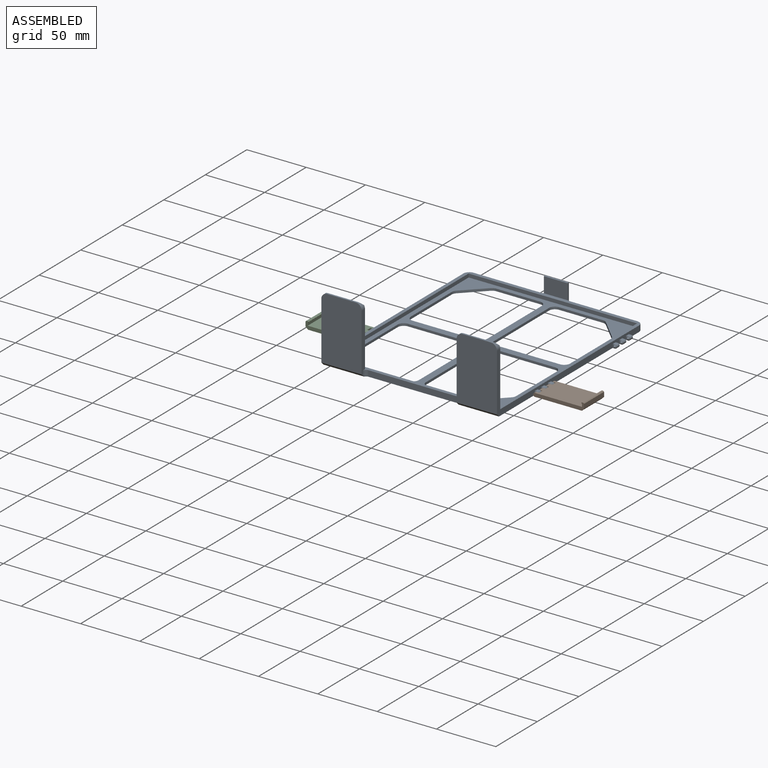
[diagram: assembled view]
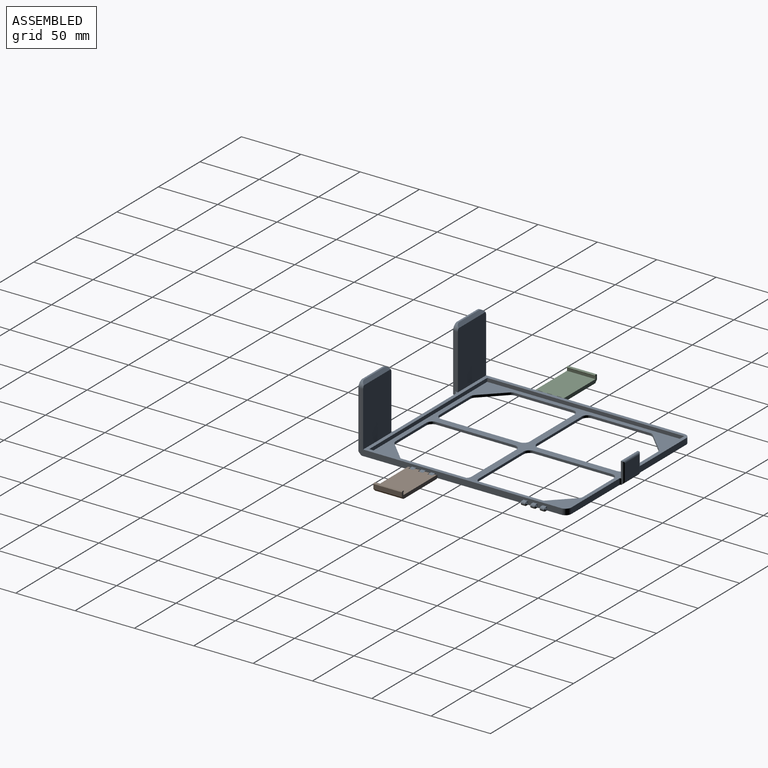
[diagram: assembled view, second angle]
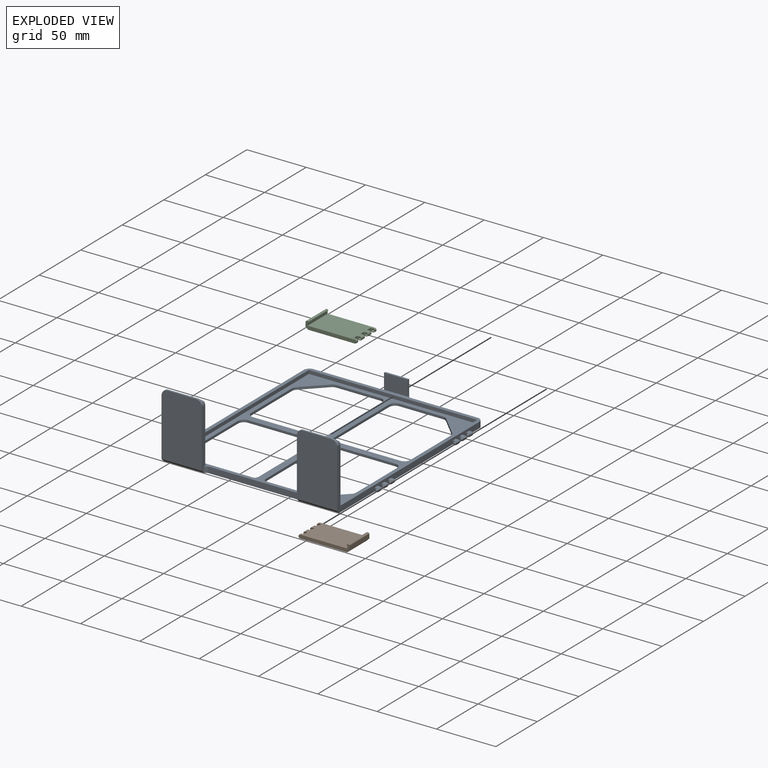
[diagram: exploded view]
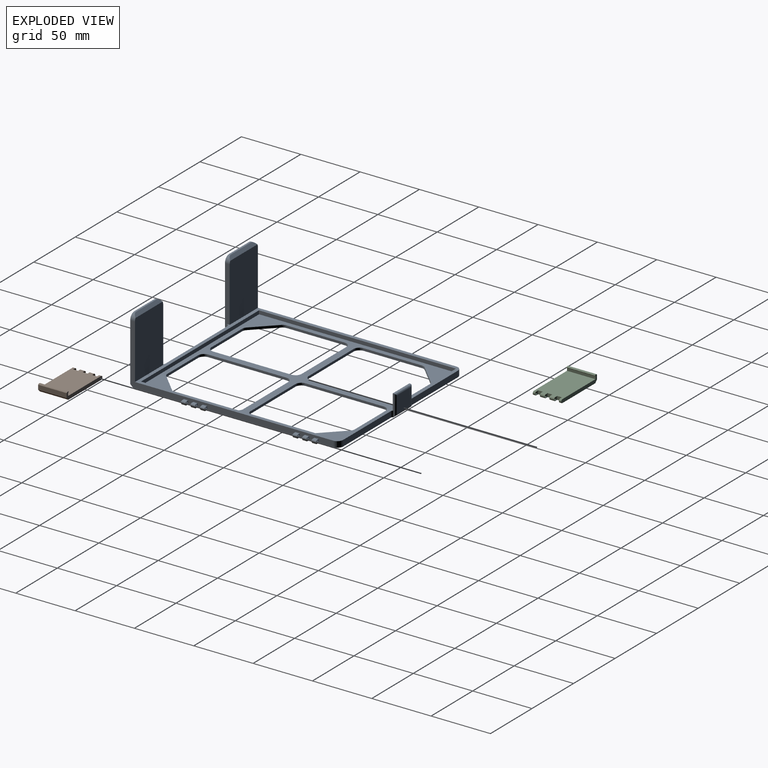
[diagram: exploded view, second angle]
ASSEMBLY  parts=3 mates=4
PART A: 167 faces, bbox 154.8x56x179 mm
  f0: plane 57.5x5mm, normal (0,0,1), area 287.5mm2, adj f4,f28,f33,f146
  f1: plane 74x5mm, normal (0,0,-1), area 370mm2, adj f28,f33,f134,f135
  f2: plane 171x51mm, normal (1,0,0), area 971.1mm2, adj f26,f28,f33,f35,f37,f39,f42,f44
  f3: plane 171x51mm, normal (-1,0,0), area 971.1mm2, adj f4,f28,f33,f56,f58,f60,f63,f65
  f4: cylinder r=5mm len=5mm, axis (0,1,0), area 39.3mm2, adj f0,f3,f28,f33
  f5: plane 57.5x5mm, normal (0,0,1), area 287.5mm2, adj f26,f28,f33,f142
  f6: plane 66x2mm, normal (-1,0,0), area 132mm2, adj f27,f28,f157,f165
  f7: plane 36.93x2mm, normal (0,0,-1), area 73.9mm2, adj f27,f28,f157,f158
  f8: plane 17.07x17.07mm, normal (0.71,0,-0.71), area 48.3mm2, adj f27,f28,f158,f159
  f9: plane 48.93x2mm, normal (1,0,0), area 97.9mm2, adj f27,f28,f159,f160
  f10: plane 36.93x2mm, normal (0,0,1), area 73.9mm2, adj f27,f28,f151,f152
  f11: plane 17.07x17.07mm, normal (-0.71,0,0.71), area 48.3mm2, adj f27,f28,f152,f153
  f12: plane 48.93x2mm, normal (-1,0,0), area 97.9mm2, adj f27,f28,f153,f154
  f13: plane 54x2mm, normal (0,0,-1), area 108mm2, adj f27,f28,f154,f166
  f14: plane 48.93x2mm, normal (1,0,0), area 97.9mm2, adj f27,f28,f161,f162
  f15: plane 17.07x17.07mm, normal (0.71,0,0.71), area 48.3mm2, adj f27,f28,f149,f162
  f16: plane 36.93x2mm, normal (0,0,1), area 73.9mm2, adj f27,f28,f149,f150
  f17: plane 66x2mm, normal (-1,0,0), area 132mm2, adj f27,f28,f150,f164
  f18: plane 48.93x2mm, normal (-1,0,0), area 97.9mm2, adj f27,f28,f147,f155
  f19: plane 17.07x17.07mm, normal (-0.71,0,-0.71), area 48.3mm2, adj f27,f28,f147,f148
  f20: plane 36.93x2mm, normal (0,0,-1), area 73.9mm2, adj f27,f28,f148,f156
  f21: plane 66x2mm, normal (1,0,0), area 132mm2, adj f27,f28,f156,f163
  f22: plane 54x2mm, normal (0,0,1), area 108mm2, adj f27,f28,f160,f165
  f23: plane 66x2mm, normal (1,0,0), area 132mm2, adj f27,f28,f151,f166
  f24: plane 54x2mm, normal (0,0,-1), area 108mm2, adj f27,f28,f161,f164
  f25: plane 54x2mm, normal (0,0,1), area 108mm2, adj f27,f28,f155,f163
  f26: cylinder r=5mm len=5mm, axis (0,1,0), area 39.3mm2, adj f2,f5,f28,f33
  f27: plane 166x142mm, normal (0,-1,0), area 4984.7mm2, adj f6,f7,f8,f9,f10,f11,f12,f13
  f28: plane 174.5x153.04mm, normal (0,1,0), area 7093.3mm2, adj f0,f1,f2,f3,f4,f5,f6,f7
  f29: plane 166x3mm, normal (1,0,0), area 498mm2, adj f27,f30,f32,f33
  f30: plane 142x3mm, normal (0,0,1), area 426mm2, adj f27,f29,f31,f33
  f31: plane 166x3mm, normal (-1,0,0), area 498mm2, adj f27,f30,f32,f33
  f32: plane 142x3mm, normal (0,0,-1), area 426mm2, adj f27,f29,f31,f33
  f33: plane 176.5x148mm, normal (0,-1,0), area 1886.1mm2, adj f0,f1,f2,f3,f4,f5,f26,f29
  f34: cylinder r=1.5mm len=3.6mm, axis (0,0,1), area 12.7mm2, adj f35,f36,f37,f39
  f35: plane 3.6x1.9mm, normal (0,-1,0), area 6.8mm2, adj f2,f34,f37,f39
  f36: plane 3.6x0.44mm, normal (0.71,0.71,0), area 2.2mm2, adj f28,f34,f37,f39
  f37: plane 3.4x3mm, normal (0,0,1), area 4mm2, adj f2,f28,f34,f35,f36,f38
  f38: cone r=1.3mm half-angle=45deg, axis (0,0,-1), area 7.5mm2, adj f37
  f39: plane 3.4x3mm, normal (0,0,-1), area 4mm2, adj f2,f28,f34,f35,f36,f40
  f40: cone r=1.3mm half-angle=45deg, axis (0,0,1), area 7.5mm2, adj f39
  f41: cylinder r=1.5mm len=3.6mm, axis (0,0,1), area 12.7mm2, adj f42,f43,f44,f46
  f42: plane 3.6x1.9mm, normal (0,-1,0), area 6.8mm2, adj f2,f41,f44,f46
  f43: plane 3.6x0.44mm, normal (0.71,0.71,0), area 2.2mm2, adj f28,f41,f44,f46
  f44: plane 3.4x3mm, normal (0,0,1), area 4mm2, adj f2,f28,f41,f42,f43,f45
  f45: cone r=1.3mm half-angle=45deg, axis (0,0,-1), area 7.5mm2, adj f44
  f46: plane 3.4x3mm, normal (0,0,-1), area 4mm2, adj f2,f28,f41,f42,f43,f47
  f47: cone r=1.3mm half-angle=45deg, axis (0,0,1), area 7.5mm2, adj f46
  f48: cylinder r=1.5mm len=3.6mm, axis (0,0,1), area 12.7mm2, adj f49,f50,f51,f53
  f49: plane 3.6x1.9mm, normal (0,-1,0), area 6.8mm2, adj f2,f48,f51,f53
  f50: plane 3.6x0.44mm, normal (0.71,0.71,0), area 2.2mm2, adj f28,f48,f51,f53
  f51: plane 3.4x3mm, normal (0,0,1), area 4mm2, adj f2,f28,f48,f49,f50,f52
  f52: cone r=1.3mm half-angle=45deg, axis (0,0,-1), area 7.5mm2, adj f51
  f53: plane 3.4x3mm, normal (0,0,-1), area 4mm2, adj f2,f28,f48,f49,f50,f54
  f54: cone r=1.3mm half-angle=45deg, axis (0,0,1), area 7.5mm2, adj f53
  f55: cylinder r=1.5mm len=3.6mm, axis (0,0,1), area 12.7mm2, adj f56,f57,f58,f60
  f56: plane 3.6x1.9mm, normal (0,-1,0), area 6.8mm2, adj f3,f55,f58,f60
  f57: plane 3.6x0.44mm, normal (-0.71,0.71,0), area 2.2mm2, adj f28,f55,f58,f60
  f58: plane 3.4x3mm, normal (0,0,1), area 4mm2, adj f3,f28,f55,f56,f57,f59
  f59: cone r=1.3mm half-angle=45deg, axis (0,0,-1), area 7.5mm2, adj f58
  f60: plane 3.4x3mm, normal (0,0,-1), area 4mm2, adj f3,f28,f55,f56,f57,f61
  f61: cone r=1.3mm half-angle=45deg, axis (0,0,1), area 7.5mm2, adj f60
  f62: cylinder r=1.5mm len=3.6mm, axis (0,0,1), area 12.7mm2, adj f63,f64,f65,f67
  f63: plane 3.6x1.9mm, normal (0,-1,0), area 6.8mm2, adj f3,f62,f65,f67
  f64: plane 3.6x0.44mm, normal (-0.71,0.71,0), area 2.2mm2, adj f28,f62,f65,f67
  f65: plane 3.4x3mm, normal (0,0,1), area 4mm2, adj f3,f28,f62,f63,f64,f66
  f66: cone r=1.3mm half-angle=45deg, axis (0,0,-1), area 7.5mm2, adj f65
  f67: plane 3.4x3mm, normal (0,0,-1), area 4mm2, adj f3,f28,f62,f63,f64,f68
  f68: cone r=1.3mm half-angle=45deg, axis (0,0,1), area 7.5mm2, adj f67
  f69: cylinder r=1.5mm len=3.6mm, axis (0,0,1), area 12.7mm2, adj f70,f71,f72,f74
  f70: plane 3.6x1.9mm, normal (0,-1,0), area 6.8mm2, adj f3,f69,f72,f74
  f71: plane 3.6x0.44mm, normal (-0.71,0.71,0), area 2.2mm2, adj f28,f69,f72,f74
  f72: plane 3.4x3mm, normal (0,0,1), area 4mm2, adj f3,f28,f69,f70,f71,f73
  f73: cone r=1.3mm half-angle=45deg, axis (0,0,-1), area 7.5mm2, adj f72
  f74: plane 3.4x3mm, normal (0,0,-1), area 4mm2, adj f3,f28,f69,f70,f71,f75
  f75: cone r=1.3mm half-angle=45deg, axis (0,0,1), area 7.5mm2, adj f74
  f76: cylinder r=1.5mm len=3.6mm, axis (0,0,-1), area 12.7mm2, adj f77,f78,f79,f81
  f77: plane 3.6x1.9mm, normal (0,-1,0), area 6.8mm2, adj f3,f76,f79,f81
  f78: plane 3.6x0.44mm, normal (-0.71,0.71,0), area 2.2mm2, adj f28,f76,f79,f81
  f79: plane 3.4x3mm, normal (0,0,-1), area 4mm2, adj f3,f28,f76,f77,f78,f80
  f80: cone r=1.3mm half-angle=45deg, axis (0,0,1), area 7.5mm2, adj f79
  f81: plane 3.4x3mm, normal (0,0,1), area 4mm2, adj f3,f28,f76,f77,f78,f82
  f82: cone r=1.3mm half-angle=45deg, axis (0,0,-1), area 7.5mm2, adj f81
  f83: cylinder r=1.5mm len=3.6mm, axis (0,0,-1), area 12.7mm2, adj f84,f85,f86,f88
  f84: plane 3.6x1.9mm, normal (0,-1,0), area 6.8mm2, adj f3,f83,f86,f88
  f85: plane 3.6x0.44mm, normal (-0.71,0.71,0), area 2.2mm2, adj f28,f83,f86,f88
  f86: plane 3.4x3mm, normal (0,0,-1), area 4mm2, adj f3,f28,f83,f84,f85,f87
  f87: cone r=1.3mm half-angle=45deg, axis (0,0,1), area 7.5mm2, adj f86
  f88: plane 3.4x3mm, normal (0,0,1), area 4mm2, adj f3,f28,f83,f84,f85,f89
  f89: cone r=1.3mm half-angle=45deg, axis (0,0,-1), area 7.5mm2, adj f88
  f90: cylinder r=1.5mm len=3.6mm, axis (0,0,-1), area 12.7mm2, adj f91,f92,f93,f95
  f91: plane 3.6x1.9mm, normal (0,-1,0), area 6.8mm2, adj f3,f90,f93,f95
  f92: plane 3.6x0.44mm, normal (-0.71,0.71,0), area 2.2mm2, adj f28,f90,f93,f95
  f93: plane 3.4x3mm, normal (0,0,-1), area 4mm2, adj f3,f28,f90,f91,f92,f94
  f94: cone r=1.3mm half-angle=45deg, axis (0,0,1), area 7.5mm2, adj f93
  f95: plane 3.4x3mm, normal (0,0,1), area 4mm2, adj f3,f28,f90,f91,f92,f96
  f96: cone r=1.3mm half-angle=45deg, axis (0,0,-1), area 7.5mm2, adj f95
  f97: cylinder r=1.5mm len=3.6mm, axis (0,0,-1), area 12.7mm2, adj f98,f99,f100,f102
  f98: plane 3.6x1.9mm, normal (0,-1,0), area 6.8mm2, adj f2,f97,f100,f102
  f99: plane 3.6x0.44mm, normal (0.71,0.71,0), area 2.2mm2, adj f28,f97,f100,f102
  f100: plane 3.4x3mm, normal (0,0,-1), area 4mm2, adj f2,f28,f97,f98,f99,f101
  f101: cone r=1.3mm half-angle=45deg, axis (0,0,1), area 7.5mm2, adj f100
  f102: plane 3.4x3mm, normal (0,0,1), area 4mm2, adj f2,f28,f97,f98,f99,f103
  f103: cone r=1.3mm half-angle=45deg, axis (0,0,-1), area 7.5mm2, adj f102
  f104: cylinder r=1.5mm len=3.6mm, axis (0,0,-1), area 12.7mm2, adj f105,f106,f107,f109
  f105: plane 3.6x1.9mm, normal (0,-1,0), area 6.8mm2, adj f2,f104,f107,f109
  f106: plane 3.6x0.44mm, normal (0.71,0.71,0), area 2.2mm2, adj f28,f104,f107,f109
  f107: plane 3.4x3mm, normal (0,0,-1), area 4mm2, adj f2,f28,f104,f105,f106,f108
  f108: cone r=1.3mm half-angle=45deg, axis (0,0,1), area 7.5mm2, adj f107
  f109: plane 3.4x3mm, normal (0,0,1), area 4mm2, adj f2,f28,f104,f105,f106,f110
  f110: cone r=1.3mm half-angle=45deg, axis (0,0,-1), area 7.5mm2, adj f109
  f111: cylinder r=1.5mm len=3.6mm, axis (0,0,-1), area 12.7mm2, adj f112,f113,f114,f116
  f112: plane 3.6x1.9mm, normal (0,-1,0), area 6.8mm2, adj f2,f111,f114,f116
  f113: plane 3.6x0.44mm, normal (0.71,0.71,0), area 2.2mm2, adj f28,f111,f114,f116
  f114: plane 3.4x3mm, normal (0,0,-1), area 4mm2, adj f2,f28,f111,f112,f113,f115
  f115: cone r=1.3mm half-angle=45deg, axis (0,0,1), area 7.5mm2, adj f114
  f116: plane 3.4x3mm, normal (0,0,1), area 4mm2, adj f2,f28,f111,f112,f113,f117
  f117: cone r=1.3mm half-angle=45deg, axis (0,0,-1), area 7.5mm2, adj f116
  f118: plane 48.5x34mm, normal (0,0,1), area 1647.9mm2, adj f3,f33,f120,f126,f127,f133
  f119: plane 53.5x34mm, normal (0,0,-1), area 1808.3mm2, adj f3,f120,f121,f126,f127,f131
  f120: plane 49.5x4mm, normal (1,0,0), area 187mm2, adj f33,f118,f119,f127,f131,f135
  f121: plane 24x1.5mm, normal (0,-1,0), area 36mm2, adj f119,f126,f127,f133
  f122: plane 48.5x34mm, normal (0,0,1), area 1647.9mm2, adj f2,f33,f123,f128,f129,f132
  f123: plane 49.5x4mm, normal (-1,0,0), area 187mm2, adj f33,f122,f124,f128,f130,f134
  f124: plane 53.5x34mm, normal (0,0,-1), area 1808.3mm2, adj f2,f123,f125,f128,f129,f130
  f125: plane 24x1.5mm, normal (0,-1,0), area 36mm2, adj f124,f128,f129,f132
  f126: cylinder r=5mm len=5mm, axis (0,0,1), area 22.9mm2, adj f3,f118,f119,f121,f133
  f127: cylinder r=5mm len=5mm, axis (0,0,-1), area 22.9mm2, adj f118,f119,f120,f121,f133
  f128: cylinder r=5mm len=5mm, axis (0,0,1), area 22.9mm2, adj f122,f123,f124,f125,f132
  f129: cylinder r=5mm len=5mm, axis (0,0,-1), area 22.9mm2, adj f2,f122,f124,f125,f132
  f130: plane 34.4x2.5mm, normal (0,0.71,-0.71), area 120.5mm2, adj f2,f28,f123,f124,f134
  f131: plane 34.4x2.5mm, normal (0,0.71,-0.71), area 120.5mm2, adj f3,f28,f119,f120,f135
  f132: plane 32.66x2.5mm, normal (0,-0.71,0.71), area 106.6mm2, adj f122,f125,f128,f129
  f133: plane 32.66x2.5mm, normal (0,-0.71,0.71), area 106.6mm2, adj f118,f121,f126,f127
  f134: cylinder r=3mm len=5mm, axis (0,-1,0), area 22.4mm2, adj f1,f28,f33,f123,f130
  f135: cylinder r=3mm len=5mm, axis (0,1,0), area 22.4mm2, adj f1,f28,f33,f120,f131
  f136: plane 13x1.1mm, normal (-1,0,0), area 14.3mm2, adj f33,f139,f140,f145
  f137: plane 17x14.5mm, normal (0,0,1), area 246.5mm2, adj f141,f143,f144,f145
  f138: plane 13x1.1mm, normal (1,0,0), area 14.3mm2, adj f33,f139,f140,f143
  f139: plane 20x13mm, normal (0,0,-1), area 260mm2, adj f33,f136,f138,f140
  f140: plane 20x1.1mm, normal (0,-1,0), area 22mm2, adj f136,f138,f139,f144
  f141: plane 20.18x2.01mm, normal (0,0.71,0.71), area 55.2mm2, adj f28,f137,f142,f143,f145,f146
  f142: cylinder r=1.5mm len=5mm, axis (0,-1,0), area 11.7mm2, adj f5,f28,f33,f141,f143
  f143: cylinder r=1.5mm len=17.5mm, axis (0,1,0), area 37.7mm2, adj f137,f138,f141,f142,f144
  f144: cylinder r=1.5mm len=20mm, axis (-1,0,0), area 44.6mm2, adj f137,f140,f143,f145
  f145: cylinder r=1.5mm len=17.5mm, axis (0,-1,0), area 37.7mm2, adj f136,f137,f141,f144,f146
  f146: cylinder r=1.5mm len=5mm, axis (0,1,0), area 11.7mm2, adj f0,f28,f33,f141,f145
  f147: cylinder r=5mm len=3.54mm, axis (0,-1,0), area 7.9mm2, adj f18,f19,f27,f28
  f148: cylinder r=5mm len=3.54mm, axis (0,-1,0), area 7.9mm2, adj f19,f20,f27,f28
  f149: cylinder r=5mm len=3.54mm, axis (0,1,0), area 7.9mm2, adj f15,f16,f27,f28
  f150: cylinder r=5mm len=5mm, axis (0,1,0), area 15.7mm2, adj f16,f17,f27,f28
  f151: cylinder r=5mm len=5mm, axis (0,1,0), area 15.7mm2, adj f10,f23,f27,f28
  f152: cylinder r=5mm len=3.54mm, axis (0,1,0), area 7.9mm2, adj f10,f11,f27,f28
  f153: cylinder r=5mm len=3.54mm, axis (0,-1,0), area 7.9mm2, adj f11,f12,f27,f28
  f154: cylinder r=5mm len=5mm, axis (0,1,0), area 15.7mm2, adj f12,f13,f27,f28
  f155: cylinder r=5mm len=5mm, axis (0,1,0), area 15.7mm2, adj f18,f25,f27,f28
  f156: cylinder r=5mm len=5mm, axis (0,-1,0), area 15.7mm2, adj f20,f21,f27,f28
  f157: cylinder r=5mm len=5mm, axis (0,-1,0), area 15.7mm2, adj f6,f7,f27,f28
  f158: cylinder r=5mm len=3.54mm, axis (0,-1,0), area 7.9mm2, adj f7,f8,f27,f28
  f159: cylinder r=5mm len=3.54mm, axis (0,1,0), area 7.9mm2, adj f8,f9,f27,f28
  f160: cylinder r=5mm len=5mm, axis (0,-1,0), area 15.7mm2, adj f9,f22,f27,f28
  f161: cylinder r=5mm len=5mm, axis (0,-1,0), area 15.7mm2, adj f14,f24,f27,f28
  f162: cylinder r=5mm len=3.54mm, axis (0,1,0), area 7.9mm2, adj f14,f15,f27,f28
  f163: cylinder r=5mm len=5mm, axis (0,1,0), area 15.7mm2, adj f21,f25,f27,f28
  f164: cylinder r=5mm len=5mm, axis (0,1,0), area 15.7mm2, adj f17,f24,f27,f28
  f165: cylinder r=5mm len=5mm, axis (0,1,0), area 15.7mm2, adj f6,f22,f27,f28
  f166: cylinder r=5mm len=5mm, axis (0,1,0), area 15.7mm2, adj f13,f23,f27,f28
PART B: 30 faces, bbox 6.4x43x24 mm
  f0: plane 39.7x24mm, normal (-1,0,0), area 927.6mm2, adj f1,f9,f10,f11,f13,f14,f16,f17
  f1: cylinder r=1.5mm len=4mm, axis (0,0,-1), area 18.8mm2, adj f0,f2,f10,f28
  f2: plane 39.5x24mm, normal (1,0,0), area 922.8mm2, adj f1,f3,f10,f11,f13,f14,f16,f17
  f3: plane 24x2mm, normal (0.71,-0.71,0), area 67.9mm2, adj f2,f4,f20,f24
  f4: plane 24x3.8mm, normal (0,-1,0), area 91.2mm2, adj f3,f5,f20,f24
  f5: plane 24x0.6mm, normal (-0.71,-0.71,0), area 20.4mm2, adj f4,f6,f20,f24
  f6: plane 24x1.4mm, normal (-1,0,0), area 33.6mm2, adj f5,f7,f20,f24
  f7: plane 24x0.5mm, normal (-0.71,0.71,0), area 17mm2, adj f6,f8,f20,f24
  f8: plane 24x0.7mm, normal (0.71,0.71,0), area 23.8mm2, adj f7,f9,f20,f24
  f9: plane 24x2.2mm, normal (0,1,0), area 52.8mm2, adj f0,f8,f20,f24
  f10: plane 3.6x3mm, normal (0,0,-1), area 4.5mm2, adj f0,f1,f2,f11,f12
  f11: plane 4x3mm, normal (0,1,0), area 12mm2, adj f0,f2,f10,f14
  f12: cone r=0mm half-angle=45deg, axis (0,0,-1), area 7.5mm2, adj f10
  f13: cylinder r=1.5mm len=4mm, axis (0,0,1), area 18.8mm2, adj f0,f2,f14,f16
  f14: plane 3.6x3mm, normal (0,0,1), area 4.5mm2, adj f0,f2,f11,f13,f15
  f15: cone r=0mm half-angle=45deg, axis (0,0,1), area 7.5mm2, adj f14
  f16: plane 3.6x3mm, normal (0,0,-1), area 4.5mm2, adj f0,f2,f13,f17,f18
  f17: plane 4x3mm, normal (0,1,0), area 12mm2, adj f0,f2,f16,f21
  f18: cone r=0mm half-angle=45deg, axis (0,0,-1), area 7.5mm2, adj f16
  f19: cylinder r=1.5mm len=3mm, axis (0,0,1), area 9.4mm2, adj f0,f2,f20,f21
  f20: plane 43x6.4mm, normal (0,0,-1), area 132.4mm2, adj f0,f2,f3,f4,f5,f6,f7,f8
  f21: plane 3.6x3mm, normal (0,0,1), area 4.5mm2, adj f0,f2,f17,f19,f22
  f22: cone r=0mm half-angle=45deg, axis (0,0,1), area 7.5mm2, adj f21
  f23: cylinder r=1.5mm len=3mm, axis (0,0,-1), area 9.4mm2, adj f0,f2,f24,f25
  f24: plane 43x6.4mm, normal (0,0,1), area 132.4mm2, adj f0,f2,f3,f4,f5,f6,f7,f8
  f25: plane 3.6x3mm, normal (0,0,-1), area 4.5mm2, adj f0,f2,f23,f26,f27
  f26: plane 4x3mm, normal (0,1,0), area 12mm2, adj f0,f2,f25,f28
  f27: cone r=0mm half-angle=45deg, axis (0,0,-1), area 7.5mm2, adj f25
  f28: plane 3.6x3mm, normal (0,0,1), area 4.5mm2, adj f0,f1,f2,f26,f29
  f29: cone r=0mm half-angle=45deg, axis (0,0,1), area 7.5mm2, adj f28
PART C: 30 faces, bbox 6.4x43x24 mm
  f0: plane 39.7x24mm, normal (1,0,0), area 927.6mm2, adj f1,f9,f10,f11,f13,f14,f16,f17
  f1: cylinder r=1.5mm len=4mm, axis (0,0,-1), area 18.8mm2, adj f0,f2,f10,f28
  f2: plane 39.5x24mm, normal (-1,0,0), area 922.8mm2, adj f1,f3,f10,f11,f13,f14,f16,f17
  f3: plane 24x2mm, normal (-0.71,-0.71,0), area 67.9mm2, adj f2,f4,f20,f24
  f4: plane 24x3.8mm, normal (0,-1,0), area 91.2mm2, adj f3,f5,f20,f24
  f5: plane 24x0.6mm, normal (0.71,-0.71,0), area 20.4mm2, adj f4,f6,f20,f24
  f6: plane 24x1.4mm, normal (1,0,0), area 33.6mm2, adj f5,f7,f20,f24
  f7: plane 24x0.5mm, normal (0.71,0.71,0), area 17mm2, adj f6,f8,f20,f24
  f8: plane 24x0.7mm, normal (-0.71,0.71,0), area 23.8mm2, adj f7,f9,f20,f24
  f9: plane 24x2.2mm, normal (0,1,0), area 52.8mm2, adj f0,f8,f20,f24
  f10: plane 3.6x3mm, normal (0,0,-1), area 4.5mm2, adj f0,f1,f2,f11,f12
  f11: plane 4x3mm, normal (0,1,0), area 12mm2, adj f0,f2,f10,f14
  f12: cone r=0mm half-angle=45deg, axis (0,0,-1), area 7.5mm2, adj f10
  f13: cylinder r=1.5mm len=4mm, axis (0,0,1), area 18.8mm2, adj f0,f2,f14,f16
  f14: plane 3.6x3mm, normal (0,0,1), area 4.5mm2, adj f0,f2,f11,f13,f15
  f15: cone r=0mm half-angle=45deg, axis (0,0,1), area 7.5mm2, adj f14
  f16: plane 3.6x3mm, normal (0,0,-1), area 4.5mm2, adj f0,f2,f13,f17,f18
  f17: plane 4x3mm, normal (0,1,0), area 12mm2, adj f0,f2,f16,f21
  f18: cone r=0mm half-angle=45deg, axis (0,0,-1), area 7.5mm2, adj f16
  f19: cylinder r=1.5mm len=3mm, axis (0,0,1), area 9.4mm2, adj f0,f2,f20,f21
  f20: plane 43x6.4mm, normal (0,0,-1), area 132.4mm2, adj f0,f2,f3,f4,f5,f6,f7,f8
  f21: plane 3.6x3mm, normal (0,0,1), area 4.5mm2, adj f0,f2,f17,f19,f22
  f22: cone r=0mm half-angle=45deg, axis (0,0,1), area 7.5mm2, adj f21
  f23: cylinder r=1.5mm len=3mm, axis (0,0,-1), area 9.4mm2, adj f0,f2,f24,f25
  f24: plane 43x6.4mm, normal (0,0,1), area 132.4mm2, adj f0,f2,f3,f4,f5,f6,f7,f8
  f25: plane 3.6x3mm, normal (0,0,-1), area 4.5mm2, adj f0,f2,f23,f26,f27
  f26: plane 4x3mm, normal (0,1,0), area 12mm2, adj f0,f2,f25,f28
  f27: cone r=0mm half-angle=45deg, axis (0,0,-1), area 7.5mm2, adj f25
  f28: plane 3.6x3mm, normal (0,0,1), area 4.5mm2, adj f0,f1,f2,f26,f29
  f29: cone r=0mm half-angle=45deg, axis (0,0,1), area 7.5mm2, adj f28
PLACE A rot(axis=(-1,0,0),90deg) t=(0,47.51,24.34)mm fixed
PLACE B rot(axis=(-0.58,0.58,0.58),120deg) t=(115.4,47.51,60.74)mm
PLACE C rot(axis=(-0.58,-0.58,-0.58),120deg) t=(-115.4,47.51,60.74)mm
MATE planar C.f2 <-> A.f28  axis (0,0,-1) through (-96.16,0.51,-16.66)mm
MATE revolute B.f1 <-> A.f34  axis (0,-1,0) through (75.9,2.51,-15.16)mm
MATE revolute C.f1 <-> A.f55  axis (0,1,0) through (-75.9,2.51,-15.16)mm
MATE planar A.f28 <-> B.f2  axis (0,0,-1) through (0,34.54,-16.66)mm
